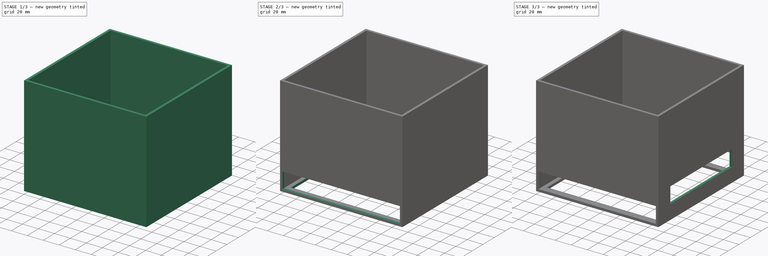
[diagram: build sequence overview — one tinted view per stage of 3, left to right]
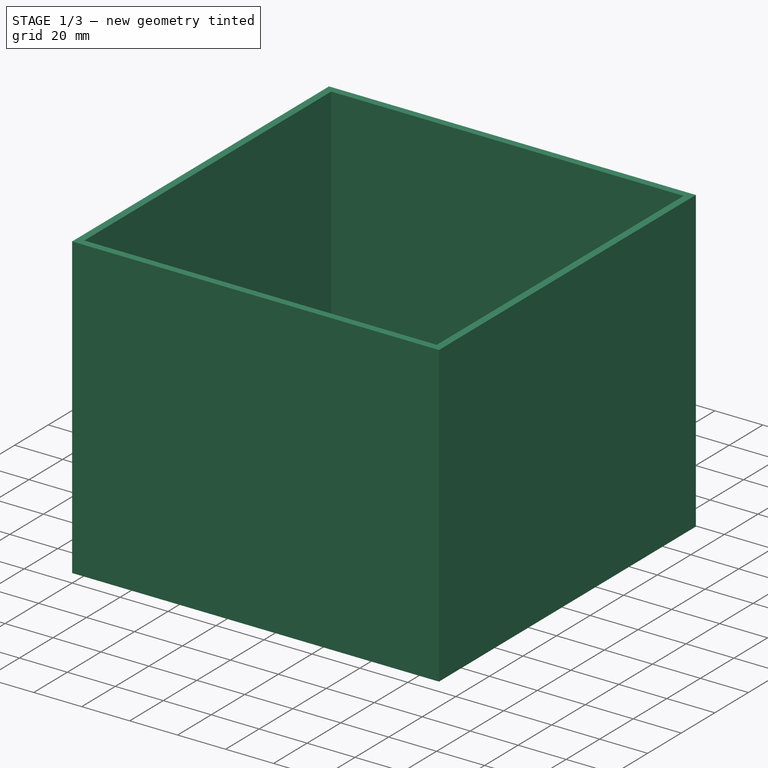
[diagram: stage 1 of 3 — iso view after this stage's code; geometry added in this stage tinted green]
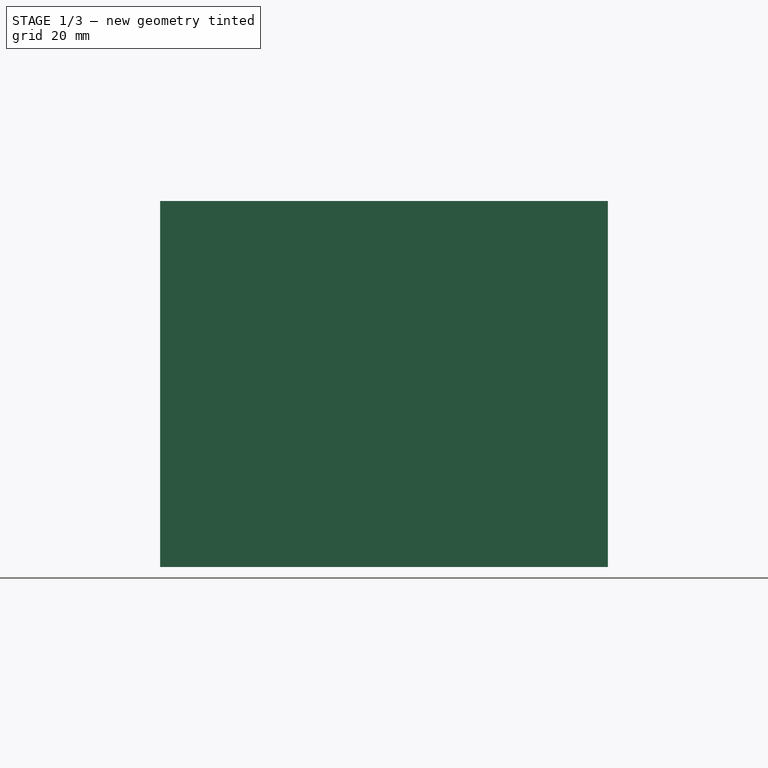
[diagram: stage 1 of 3 — front view after this stage's code; geometry added in this stage tinted green]
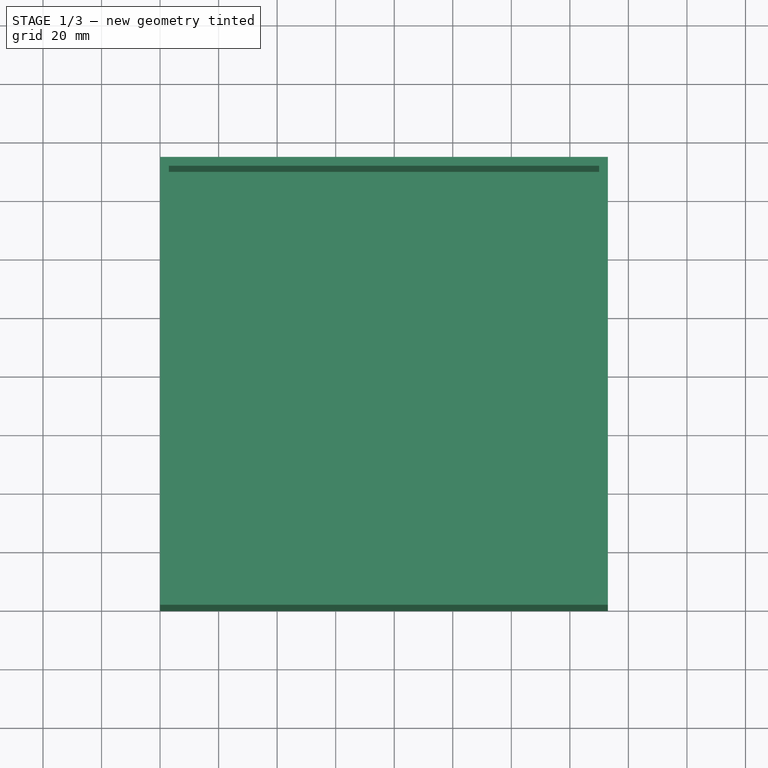
[diagram: stage 1 of 3 — top view after this stage's code; geometry added in this stage tinted green]
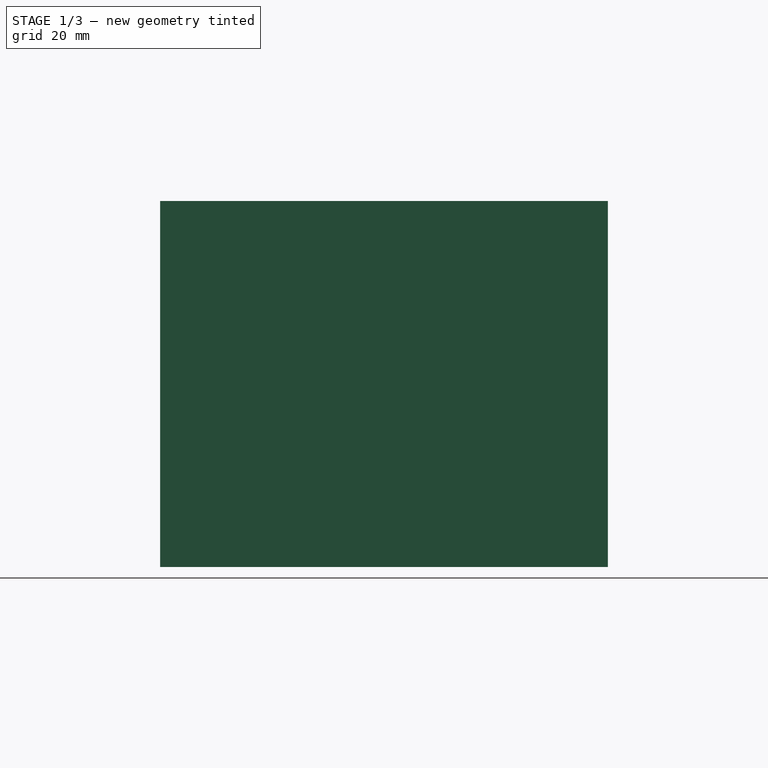
[diagram: stage 1 of 3 — right view after this stage's code; geometry added in this stage tinted green]
FCSTD DOCUMENT  (FreeCAD 0.21R33694 (Git))
Label: AquariumLightShade
License: All rights reserved
LicenseURL: https://en.wikipedia.org/wiki/All_rights_reserved
objects: Sketcher::SketchObject×6, PartDesign::Pocket×4, PartDesign::Pad×2, PartDesign::Body×1
note: 19 computed .brp shape members not serialized (recipe doc carries the construction recipe); baked Part::Feature solids carry a one-line shape summary decoded from their .brp

FEATURE [Sketcher::SketchObject] Sketch
  FullyConstrained = true
  MapMode = 5
  Support = -> [XY_Plane]
  sketch-geometry (4):
    g0: LineSegment StartX=0 StartY=0 StartZ=0 EndX=153 EndY=0 EndZ=0
    g1: LineSegment StartX=153 StartY=0 StartZ=0 EndX=153 EndY=153 EndZ=0
    g2: LineSegment StartX=153 StartY=153 StartZ=0 EndX=0 EndY=153 EndZ=0
    g3: LineSegment StartX=0 StartY=153 StartZ=0 EndX=0 EndY=0 EndZ=0
  constraints (11):
    c: Coincident(g0,g1)
    c: Coincident(g1,g2)
    c: Coincident(g2,g3)
    c: Coincident(g3,g0)
    c: Horizontal(g0)
    c: Horizontal(g2)
    c: Vertical(g1)
    c: Vertical(g3)
    c: Coincident(g0,g-1)
    c: DistanceY(g3,g3) = 153
    c: DistanceX(g0,g0) = 153
FEATURE [PartDesign::Pad] Pad
  Direction = (0,0,1)
  Length = 3
  Length2 = 10
  Profile = -> Sketch
  ReferenceAxis = -> Sketch [N_Axis]
  Type = 0
FEATURE [Sketcher::SketchObject] Sketch001
  FullyConstrained = true
  MapMode = 5
  Placement = pos=(0,0,3) rot=(0,0,1;0rad)
  Support = -> [Pad]
  sketch-geometry (11):
    g0: GeomPoint X=153 Y=0 Z=0
    g1: GeomPoint X=153 Y=153 Z=0
    g2: GeomPoint X=0 Y=153 Z=0
    g3: LineSegment StartX=0 StartY=0 StartZ=0 EndX=153 EndY=0 EndZ=0
    g4: LineSegment StartX=153 StartY=0 StartZ=0 EndX=153 EndY=153 EndZ=0
    g5: LineSegment StartX=153 StartY=153 StartZ=0 EndX=0 EndY=153 EndZ=0
    g6: LineSegment StartX=0 StartY=153 StartZ=0 EndX=0 EndY=0 EndZ=0
    g7: LineSegment StartX=3 StartY=3 StartZ=0 EndX=150 EndY=3 EndZ=0
    g8: LineSegment StartX=150 StartY=3 StartZ=0 EndX=150 EndY=150 EndZ=0
    g9: LineSegment StartX=150 StartY=150 StartZ=0 EndX=3 EndY=150 EndZ=0
    g10: LineSegment StartX=3 StartY=150 StartZ=0 EndX=3 EndY=3 EndZ=0
  constraints (28):
    c: PointOnObject(g2,g-2)
    c: DistanceY(g-1,g2) = 153
    c: DistanceY(g-1,g1) = 153
    c: DistanceY(g-1,g0) = 0
    c: DistanceX(g-1,g0) = 153
    c: DistanceX(g-1,g1) = 153
    c: Coincident(g3,g4)
    c: Coincident(g4,g5)
    c: Coincident(g5,g6)
    c: Coincident(g6,g3)
    c: Horizontal(g3)
    c: Horizontal(g5)
    c: Vertical(g4)
    c: Vertical(g6)
    c: Coincident(g3,g-1)
    c: Coincident(g4,g1)
    c: Coincident(g7,g8)
    c: Coincident(g8,g9)
    c: Coincident(g9,g10)
    c: Coincident(g10,g7)
    c: Horizontal(g7)
    c: Horizontal(g9)
    c: Vertical(g8)
    c: Vertical(g10)
    c: DistanceX(g3,g7) = 3
    c: DistanceX(g8,g4) = 3
    c: DistanceY(g9,g5) = 3
    c: DistanceY(g3,g7) = 3
FEATURE [PartDesign::Pad] Pad001
  BaseFeature = -> Pad
  Direction = (0,0,1)
  Length = 122
  Length2 = 10
  Profile = -> Sketch001
  ReferenceAxis = -> Sketch001 [N_Axis]
  Type = 0
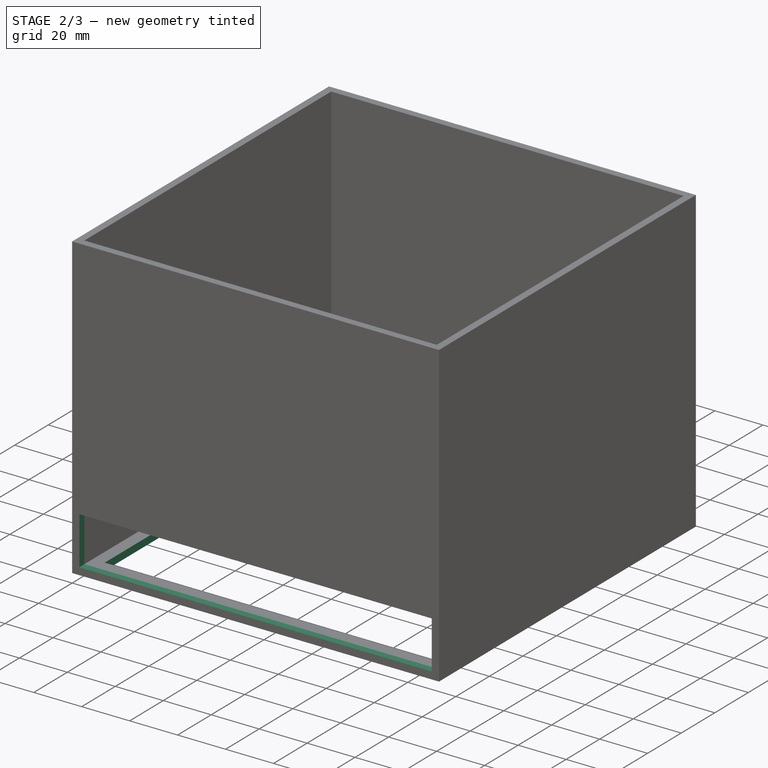
[diagram: stage 2 of 3 — iso view after this stage's code; geometry added in this stage tinted green]
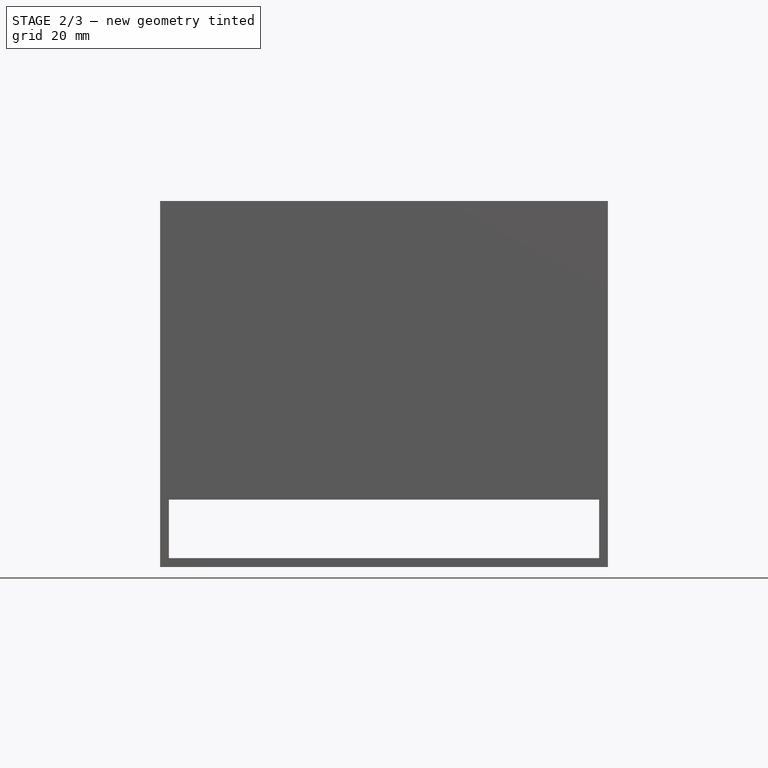
[diagram: stage 2 of 3 — front view after this stage's code; geometry added in this stage tinted green]
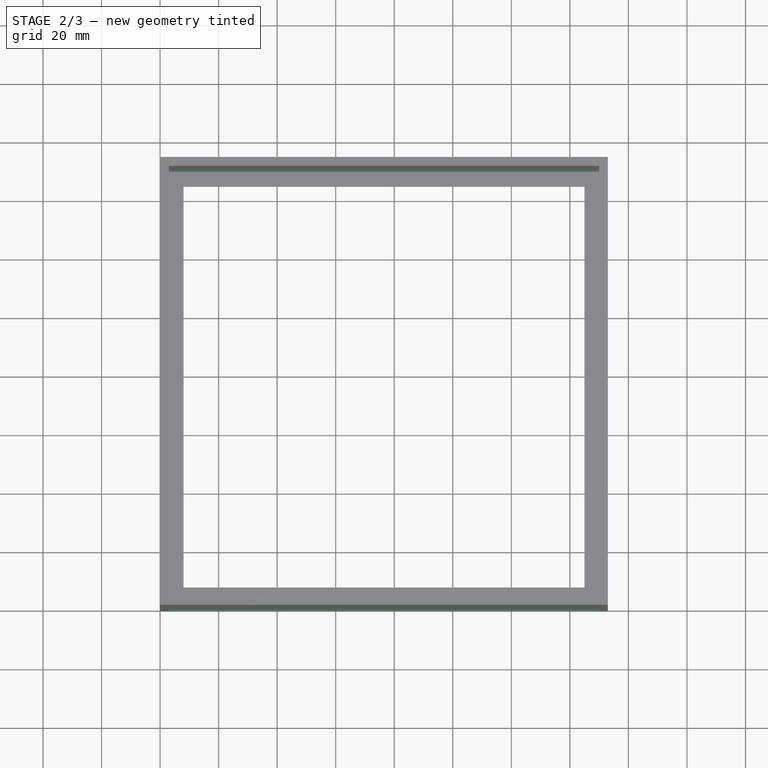
[diagram: stage 2 of 3 — top view after this stage's code; geometry added in this stage tinted green]
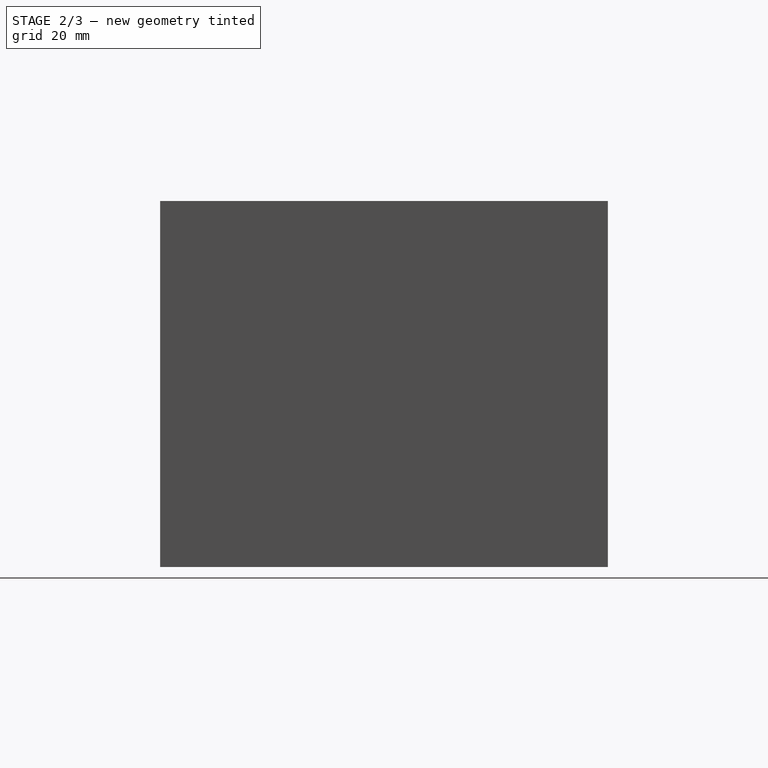
[diagram: stage 2 of 3 — right view after this stage's code; geometry added in this stage tinted green]
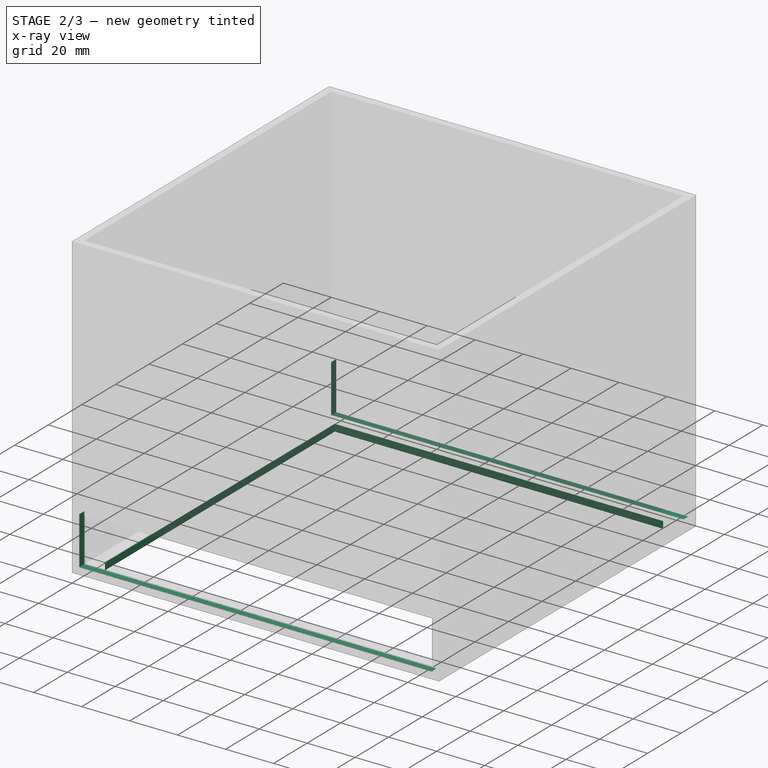
[diagram: stage 2 of 3 — x-ray composite at the iso view; earlier geometry ghosted, this stage's added geometry solid]
FEATURE [Sketcher::SketchObject] Sketch002
  FullyConstrained = true
  MapMode = 5
  Placement = pos=(0,153,0) rot=(0,0.707107,0.707107;3.14159rad)
  Support = -> [Pad001]
  sketch-geometry (7):
    g0: GeomPoint X=-3 Y=3 Z=0
    g1: GeomPoint X=-150 Y=3 Z=0
    g2: GeomPoint X=-150 Y=23 Z=0
    g3: LineSegment StartX=-150 StartY=23 StartZ=0 EndX=-3 EndY=23 EndZ=0
    g4: LineSegment StartX=-3 StartY=23 StartZ=0 EndX=-3 EndY=3 EndZ=0
    g5: LineSegment StartX=-3 StartY=3 StartZ=0 EndX=-150 EndY=3 EndZ=0
    g6: LineSegment StartX=-150 StartY=3 StartZ=0 EndX=-150 EndY=23 EndZ=0
  constraints (16):
    c: DistanceY(g-1,g0) = 3
    c: DistanceY(g-1,g1) = 3
    c: DistanceX(g0,g-1) = 3
    c: DistanceX(g1,g-1) = 150
    c: DistanceX(g1,g2) = 0
    c: DistanceY(g1,g2) = 20
    c: Coincident(g3,g4)
    c: Coincident(g4,g5)
    c: Coincident(g5,g6)
    c: Coincident(g6,g3)
    c: Horizontal(g3)
    c: Horizontal(g5)
    c: Vertical(g4)
    c: Vertical(g6)
    c: Coincident(g3,g2)
    c: Coincident(g4,g0)
FEATURE [PartDesign::Pocket] Pocket
  BaseFeature = -> Pad001
  Direction = (0,-1,2e-16)
  Length = 200
  Length2 = 5
  Profile = -> Sketch002
  ReferenceAxis = -> Sketch002 [N_Axis]
  Type = 0
FEATURE [Sketcher::SketchObject] Sketch003
  FullyConstrained = true
  MapMode = 5
  Placement = pos=(0,0,0) rot=(1,0,0;3.14159rad)
  Support = -> [Pocket]
  sketch-geometry (6):
    g0: GeomPoint X=8 Y=-8 Z=0
    g1: GeomPoint X=145 Y=-145 Z=0
    g2: LineSegment StartX=8 StartY=-8 StartZ=0 EndX=145 EndY=-8 EndZ=0
    g3: LineSegment StartX=145 StartY=-8 StartZ=0 EndX=145 EndY=-145 EndZ=0
    g4: LineSegment StartX=145 StartY=-145 StartZ=0 EndX=8 EndY=-145 EndZ=0
    g5: LineSegment StartX=8 StartY=-145 StartZ=0 EndX=8 EndY=-8 EndZ=0
  constraints (14):
    c: DistanceX(g-1,g0) = 8
    c: DistanceY(g0,g-1) = 8
    c: DistanceX(g-1,g1) = 145
    c: DistanceY(g1,g-1) = 145
    c: Coincident(g2,g3)
    c: Coincident(g3,g4)
    c: Coincident(g4,g5)
    c: Coincident(g5,g2)
    c: Horizontal(g2)
    c: Horizontal(g4)
    c: Vertical(g3)
    c: Vertical(g5)
    c: Coincident(g2,g0)
    c: Coincident(g3,g1)
FEATURE [PartDesign::Pocket] Pocket001
  BaseFeature = -> Pocket
  Direction = (0,0,1)
  Length = 5
  Length2 = 5
  Profile = -> Sketch003
  ReferenceAxis = -> Sketch003 [N_Axis]
  Type = 0
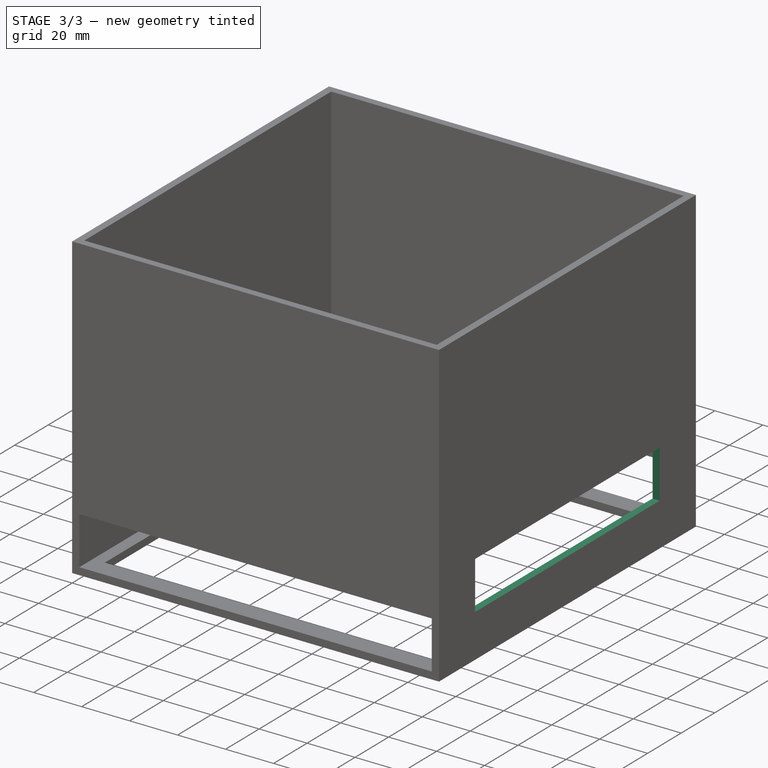
[diagram: stage 3 of 3 — iso view after this stage's code; geometry added in this stage tinted green]
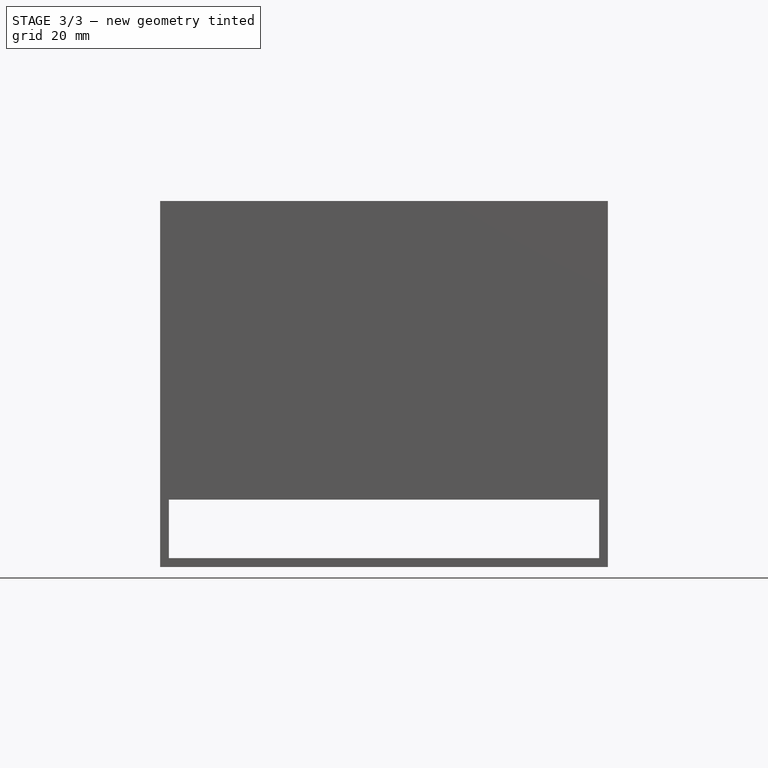
[diagram: stage 3 of 3 — front view after this stage's code; geometry added in this stage tinted green]
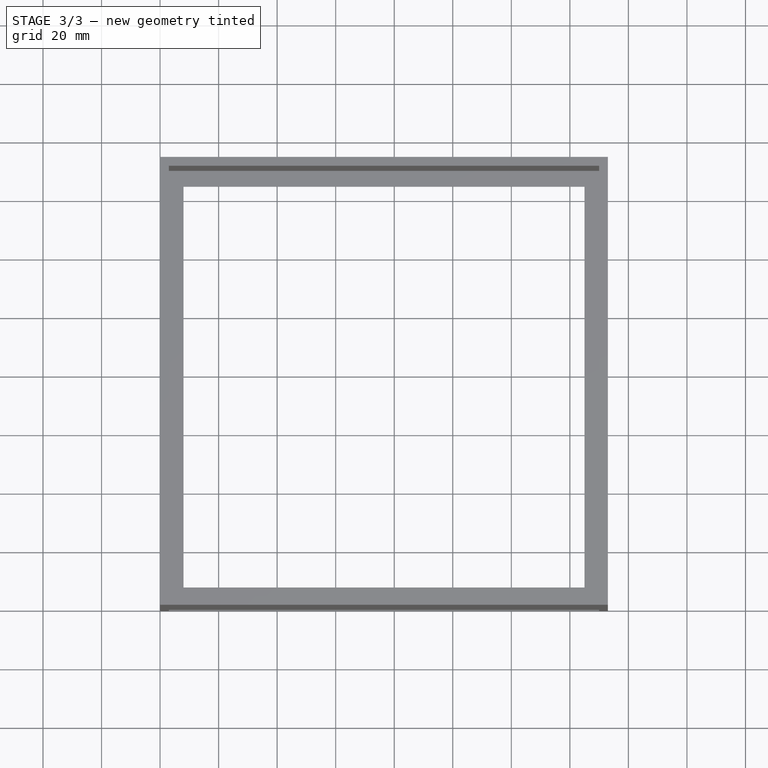
[diagram: stage 3 of 3 — top view after this stage's code; geometry added in this stage tinted green]
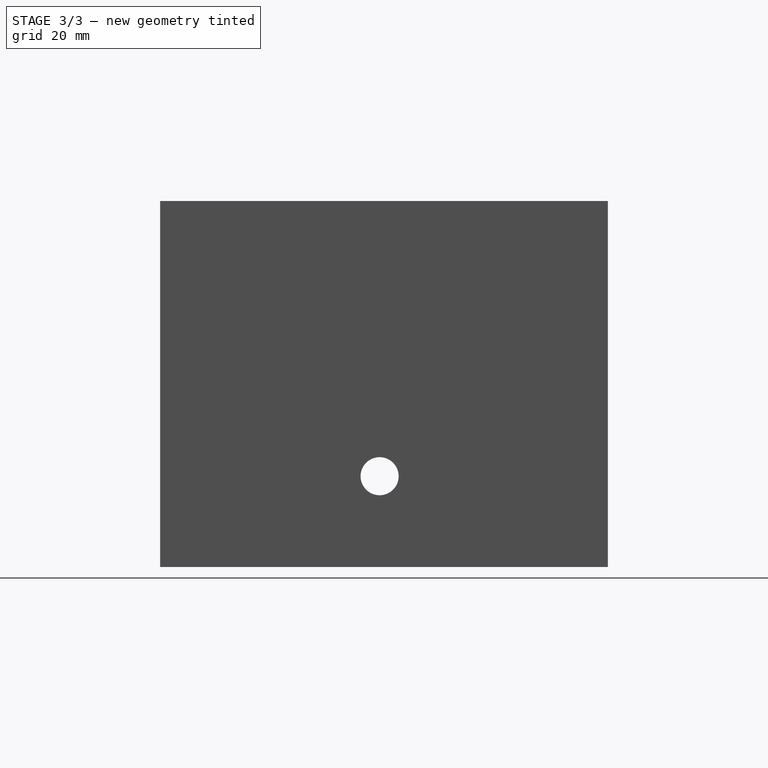
[diagram: stage 3 of 3 — right view after this stage's code; geometry added in this stage tinted green]
FEATURE [Sketcher::SketchObject] Sketch004
  FullyConstrained = true
  MapMode = 5
  Placement = pos=(0,0,0) rot=(0.57735,-0.57735,-0.57735;2.0944rad)
  Support = -> [Pocket001]
  sketch-geometry (3):
    g0: Circle CenterX=-75 CenterY=31 CenterZ=0 NormalX=0 NormalY=0 NormalZ=1 AngleXU=0 Radius=6.5
    g1: GeomPoint X=-3 Y=3 Z=0
    g2: GeomPoint X=-150 Y=3 Z=0
  constraints (7):
    c: Radius(g0) = 6.5
    c: DistanceX(g1,g-1) = 3
    c: DistanceX(g2,g-1) = 150
    c: DistanceY(g-1,g1) = 3
    c: DistanceY(g-1,g2) = 3
    c: DistanceY(g2,g0) = 28
    c: DistanceX(g2,g0) = 75
FEATURE [PartDesign::Pocket] Pocket002
  BaseFeature = -> Pocket001
  Direction = (1,0,0)
  Length = 3
  Length2 = 5
  Profile = -> Sketch004
  ReferenceAxis = -> Sketch004 [N_Axis]
  Type = 0
FEATURE [Sketcher::SketchObject] Sketch005
  FullyConstrained = true
  MapMode = 5
  Placement = pos=(153,0,0) rot=(0.57735,0.57735,0.57735;2.0944rad)
  Support = -> [Pocket002]
  sketch-geometry (8):
    g0: GeomPoint X=3 Y=3 Z=0
    g1: GeomPoint X=150 Y=3 Z=0
    g2: GeomPoint X=131.5 Y=38 Z=0
    g3: GeomPoint X=21.5 Y=38 Z=0
    g4: LineSegment StartX=21.5 StartY=38 StartZ=0 EndX=131.5 EndY=38 EndZ=0
    g5: LineSegment StartX=131.5 StartY=38 StartZ=0 EndX=131.5 EndY=18 EndZ=0
    g6: LineSegment StartX=131.5 StartY=18 StartZ=0 EndX=21.5 EndY=18 EndZ=0
    g7: LineSegment StartX=21.5 StartY=18 StartZ=0 EndX=21.5 EndY=38 EndZ=0
  constraints (19):
    c: DistanceX(g-1,g0) = 3
    c: DistanceX(g-1,g1) = 150
    c: DistanceY(g-1,g0) = 3
    c: DistanceY(g-1,g1) = 3
    c: DistanceY(g1,g2) = 35
    c: DistanceY(g3,g2) = 0
    c: DistanceX(g3,g2) = 110
    c: DistanceX(g-1,g3) = 21.5
    c: Coincident(g4,g5)
    c: Coincident(g5,g6)
    c: Coincident(g6,g7)
    c: Coincident(g7,g4)
    c: Horizontal(g4)
    c: Horizontal(g6)
    c: Vertical(g5)
    c: Vertical(g7)
    c: Coincident(g4,g3)
    c: DistanceX(g6,g6) = 110
    c: DistanceY(g1,g5) = 15
FEATURE [PartDesign::Pocket] Pocket003
  BaseFeature = -> Pocket002
  Direction = (-1,0,0)
  Length = 3
  Length2 = 5
  Profile = -> Sketch005
  ReferenceAxis = -> Sketch005 [N_Axis]
  Type = 0
FEATURE [PartDesign::Body] Body
  Group = -> [Sketch,Pad,Sketch001,Pad001,Sketch002,Pocket,Sketch003,Pocket001,Sketch004,Pocket002,Sketch005,Pocket003]
  Origin = -> Origin
  Tip = -> Pocket003
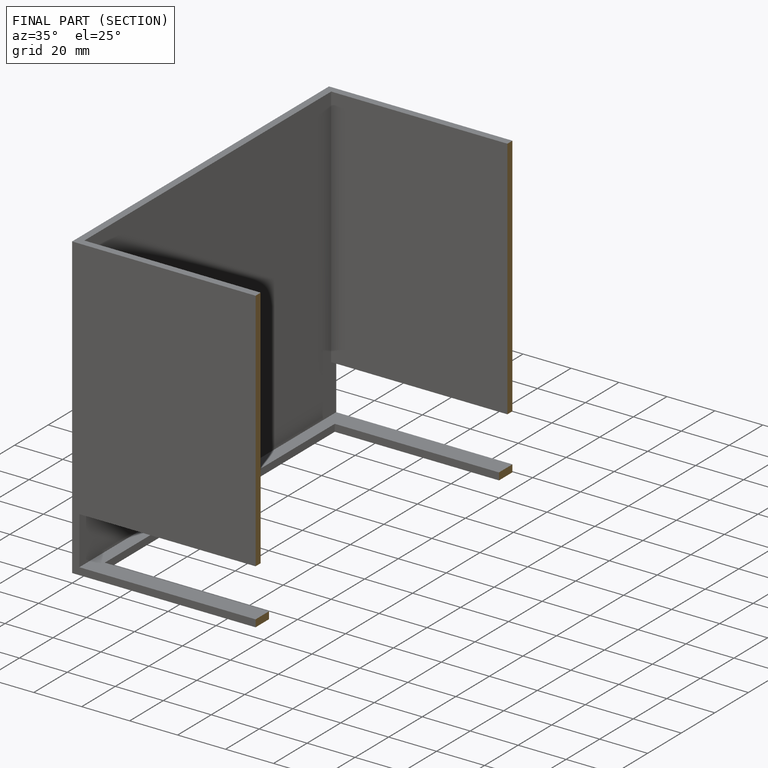
[diagram: finished part — half-section view (interior)]
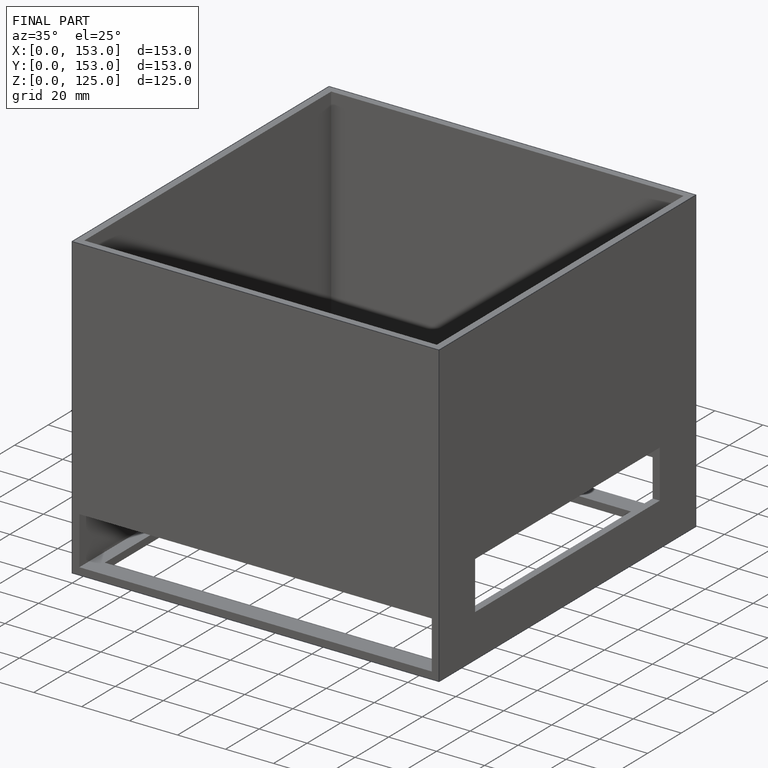
[diagram: finished part — iso view with bounding-box wireframe]
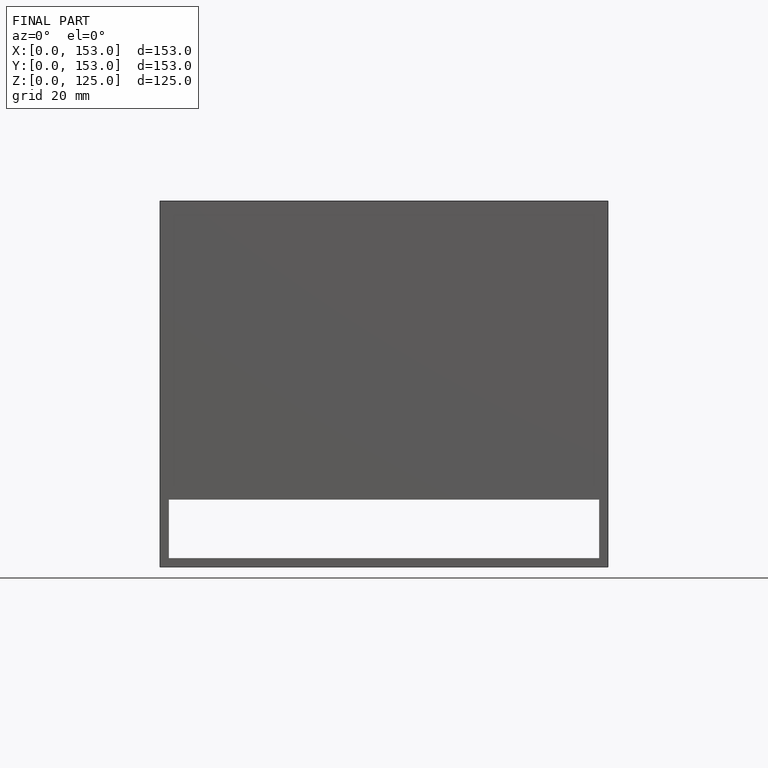
[diagram: finished part — front view with bounding-box wireframe]
